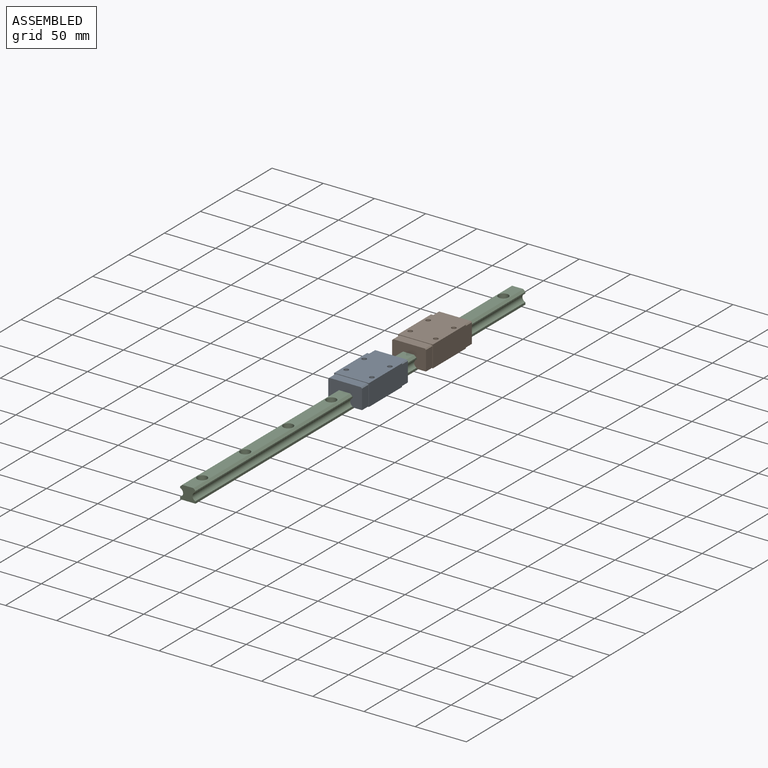
[diagram: assembled view]
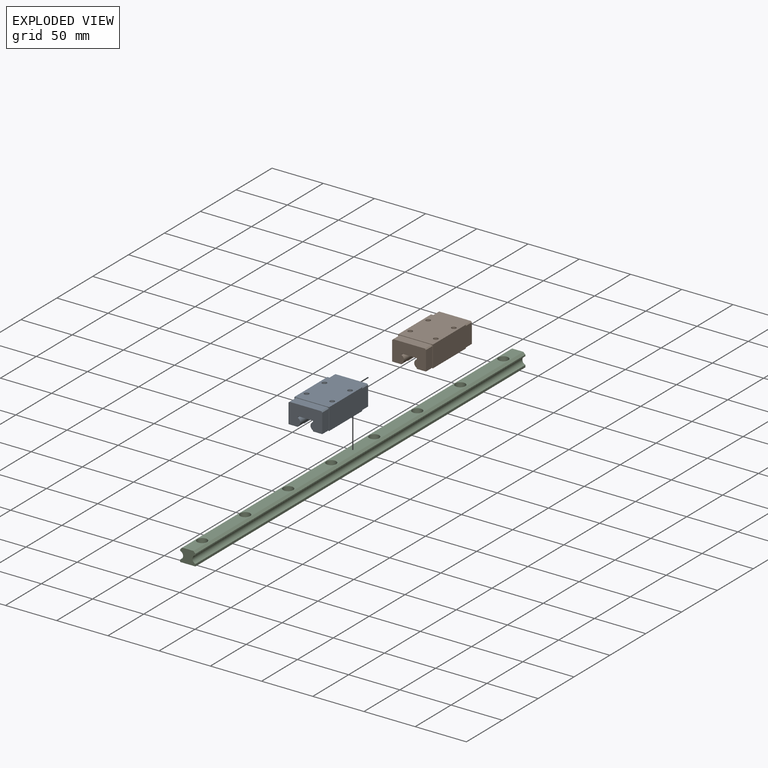
[diagram: exploded view]
GUIDED TOUR — MATED ASSEMBLY (Onshape document 84d2dcffe52817530951cf2d, AutoMate assembly 84d2dcffe52817530951cf2d_30d98350878cbec447f55ae2_350e7b7f4f0bf1265545a61c_default)

This assembly has 3 components, labeled P0..P2 below (a component is one placed occurrence of a part; the same part can appear more than once), held together by 3 mates. A mate is a constraint between two components; its type names the relative motion it leaves free:
  CYLINDRICAL — leaves both rotation about and translation along the listed axis free,
  PARALLEL — keeps the two listed directions parallel.
Axis/direction vectors are unit vectors and 'through' points are millimeter coordinates, both in the assembly's world frame.

MATES
  1. PARALLEL "Parallel 1": P1 <-> P2, direction (0.000, 0.000, -1.000) through (33.70, -156.79, 16.94) mm
  2. CYLINDRICAL "Cylindrical 1": P1 <-> P2, axis (0.000, 1.000, 0.000) through (24.70, -124.79, 11.94) mm
  3. CYLINDRICAL "Cylindrical 2": P0 <-> P2, axis (0.000, 1.000, 0.000) through (24.70, -213.99, 11.94) mm

ASSEMBLY ORDER
  1. P1 — the base component [order verified]
  2. P0 [order verified]
  3. P2 [order verified]
Order-tag legend:
  [order verified] — this step's position reverses a verified removal order: the component was checked to insert without passing through the ones already placed.

Of the 3 components, 1 carries the full construction recipe — the FeatureScript program that regenerates the part's solid from scratch; the rest are supplied as boundary geometry only.
Each toured component is shown spotlighted twice — in the assembled view, then in the exploded view, where a leader line traces a displaced component back to its assembled socket (saturated green if recipe-attached, orange if geometry-only; every other component desaturated gray) — followed by its recipe or geometry summary and the mates that hold it.
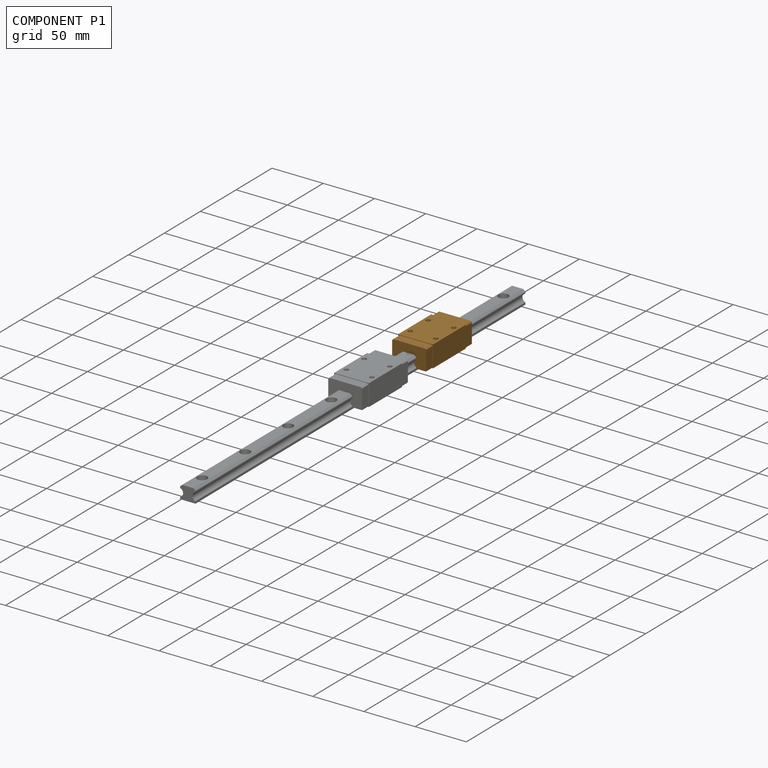
[diagram: component P1 — assembled]
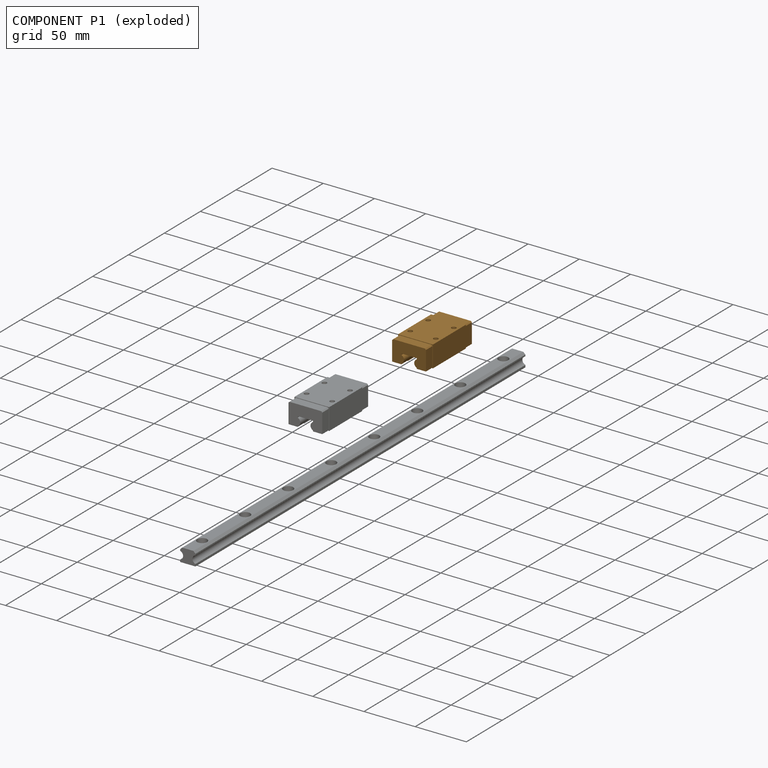
[diagram: component P1 — exploded]
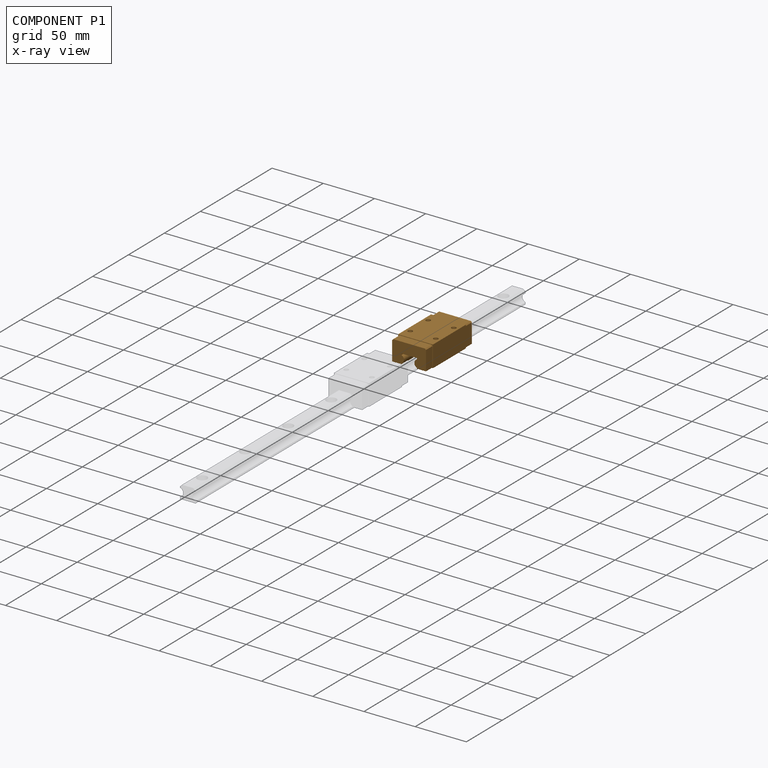
[diagram: component P1 — x-ray view]
COMPONENT P1 — geometry summary (no construction recipe available for this part):
  bounding box: 64.0 x 34.0 x 21.0 mm
  B-rep topology: 1 solid, 38 faces, 204 edges
  volume: 36269 mm^3 (79% of its bounding box)
  symmetry: 2-fold rotationally symmetric about the z axis; mirror-symmetric across its x mid-plane, y mid-plane
Held by: PARALLEL mate "Parallel 1" to P2; CYLINDRICAL mate "Cylindrical 1" to P2.
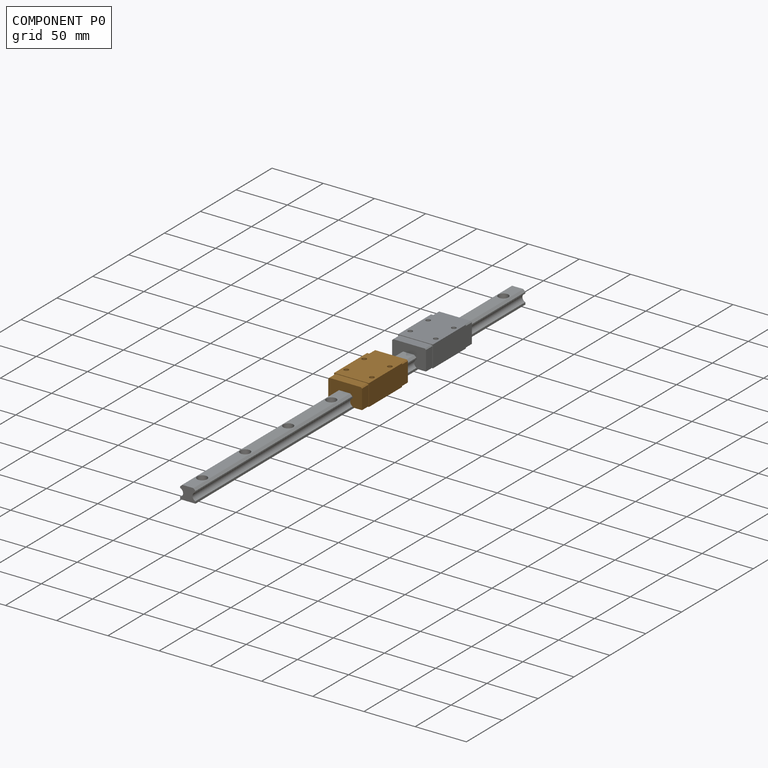
[diagram: component P0 — assembled]
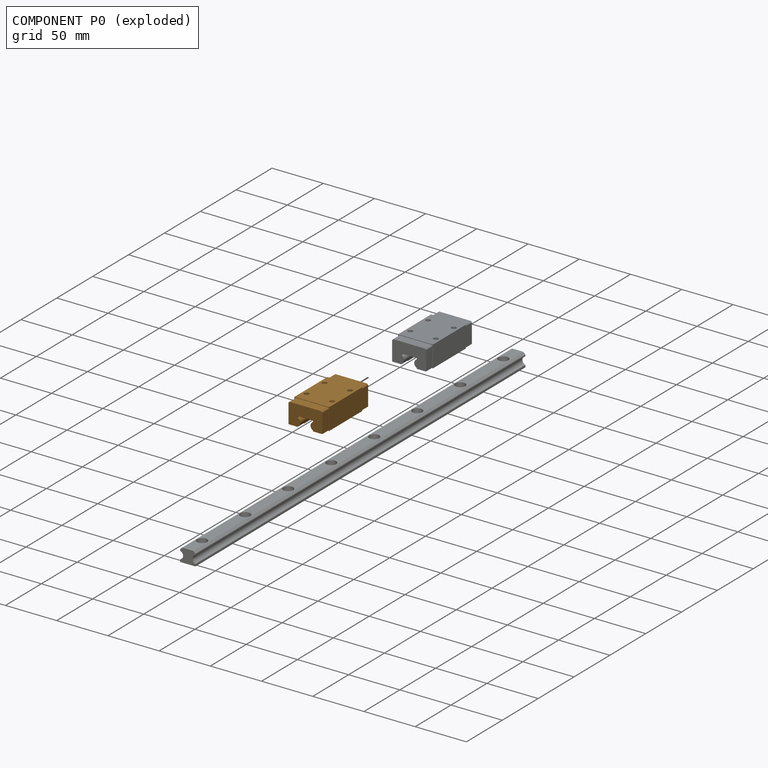
[diagram: component P0 — exploded]
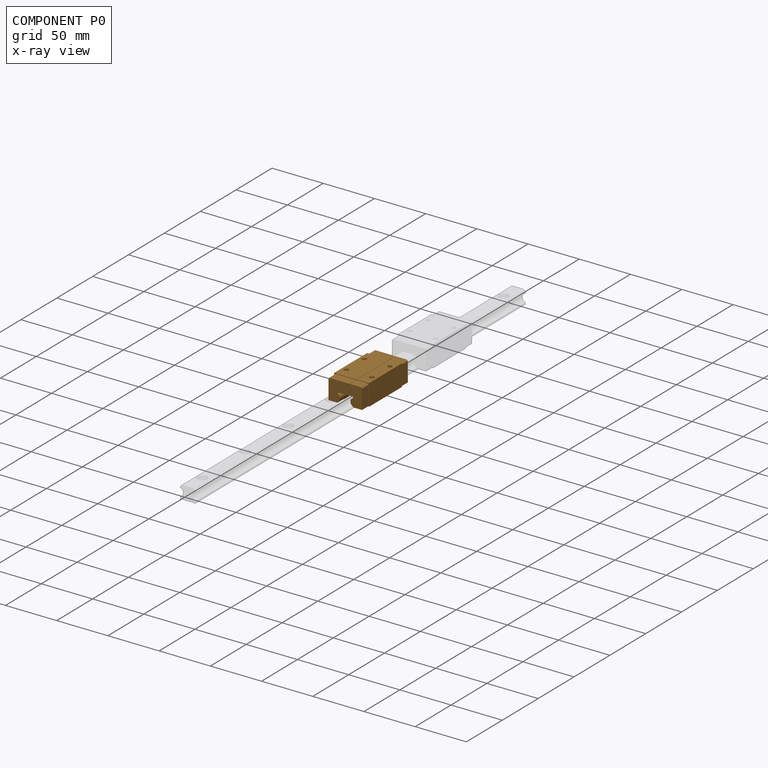
[diagram: component P0 — x-ray view]
COMPONENT P0 — geometry summary (no construction recipe available for this part):
  bounding box: 64.0 x 34.0 x 21.0 mm
  B-rep topology: 1 solid, 38 faces, 204 edges
  volume: 36269 mm^3 (79% of its bounding box)
  symmetry: 2-fold rotationally symmetric about the z axis; mirror-symmetric across its x mid-plane, y mid-plane
Held by: CYLINDRICAL mate "Cylindrical 2" to P2.
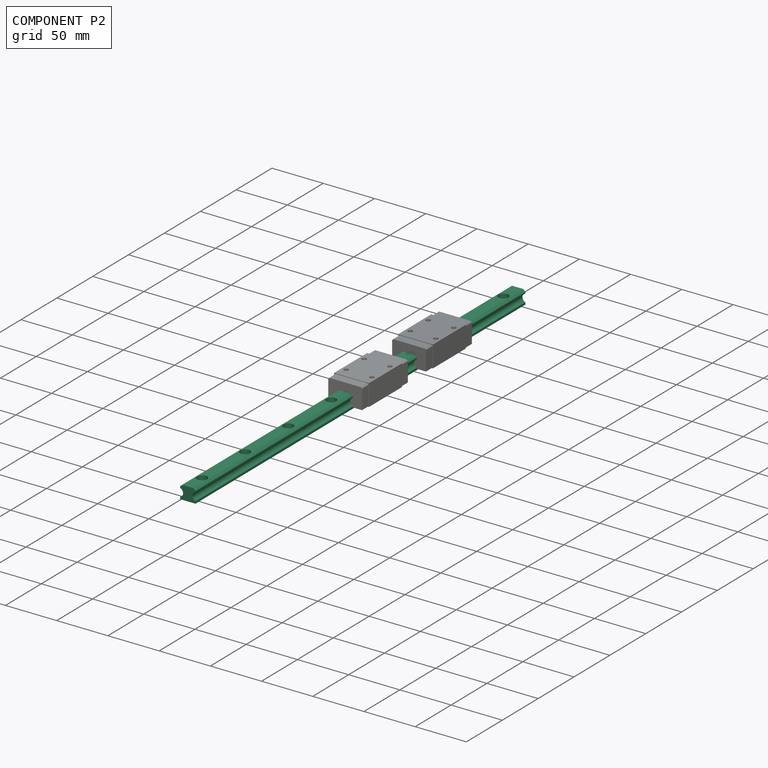
[diagram: component P2 — assembled]
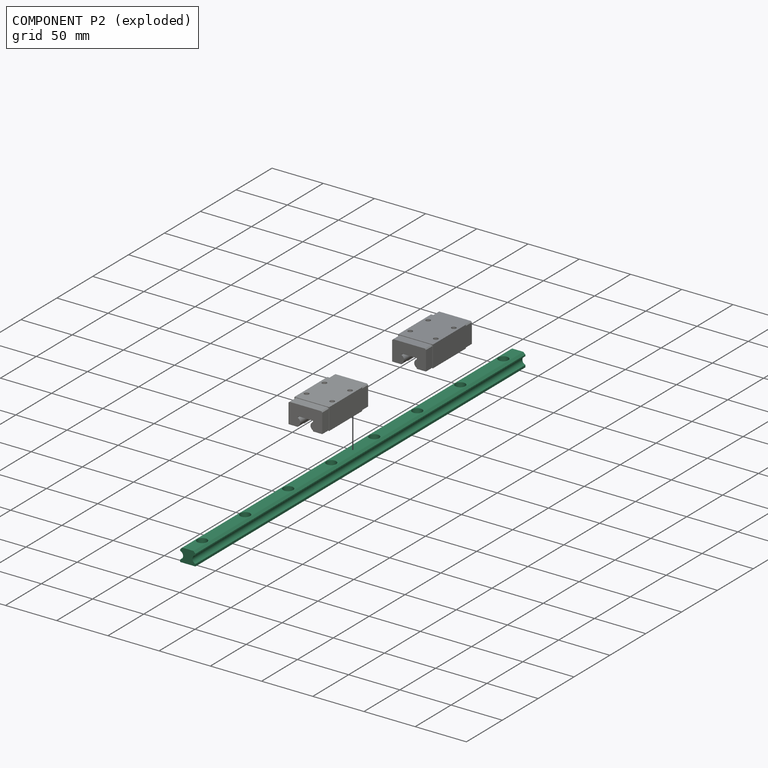
[diagram: component P2 — exploded]
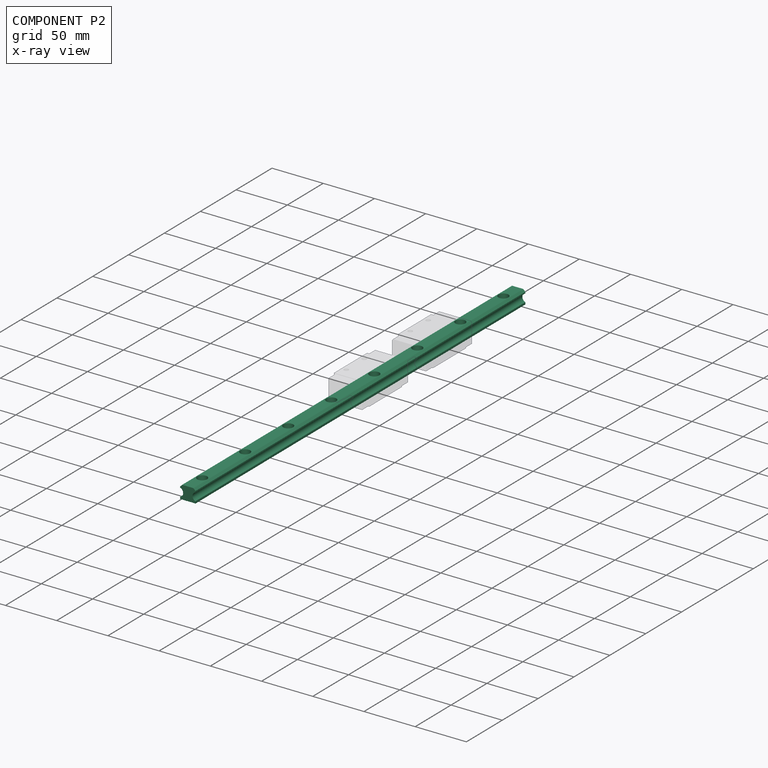
[diagram: component P2 — x-ray view]
COMPONENT P2 — recipe-attached (CADFS 00295652, mesh-verified: the recipe's output STEP matches this component's geometry to below the mesh-comparison resolution (tessellation chordal tolerance ~0.691 mm)).
Held by: PARALLEL mate "Parallel 1" to P1; CYLINDRICAL mate "Cylindrical 1" to P1; CYLINDRICAL mate "Cylindrical 2" to P0.
Construction recipe (FeatureScript — the CAD program that rebuilds this solid; sketch coordinates are in the units given by the * unit suffixes, e.g. mm):

FeatureScript 1511;
import(path : "onshape/std/geometry.fs", version : "1511.0");
import(path : "onshape/std/common.fs", version : "1511.0");
const mm = millimeter;
const VERTEX = EntityType.VERTEX;
const EDGE = EntityType.EDGE;
const FACE = EntityType.FACE;
const BODY = EntityType.BODY;
function v(x, y){return vector(x, y);}
function OD(order){return orderDisambiguation(order);}
function OSD(set){return originalSetDisambiguation(set);}
function TD(topology){return topologyDisambiguation(topology);}
function TDD(query){return trueDependencyDisambiguation(query);}
function sQuery(a, b, c) {return sketchEntityQuery(a, b, c);}

annotation { "Feature Type Name" : "Feature", "Feature Type Description" : "" }
export const myFeature = defineFeature(function(context is Context, id is Id, definition is map)
    precondition{}
    {
        {
            var Q0;
            Q0=qCreatedBy(makeId("Front.planeOp"),FACE);
            var sketch = newSketch(context, id + "F0", { "sketchPlane" : qUnion([Q0])});
            skLineSegment(sketch, "E0", {"start": v(0, 0) * mm, "end": v(0, 42.87) * mm, "construction": true});
            skLineSegment(sketch, "E1.bottom", {"start": v(-7.5, 0) * mm, "end": v(7.5, 0) * mm});
            skLineSegment(sketch, "E1.top", {"start": v(-5.5, 13.2) * mm, "end": v(5.5, 13.2) * mm});
            skLineSegment(sketch, "E1.left", {"start": v(-7.5, 0) * mm, "end": v(-7.5, 2.15) * mm});
            skLineSegment(sketch, "E1.right", {"start": v(7.5, 0) * mm, "end": v(7.5, 2.15) * mm});
            skArc(sketch, "E2", {"start": v(-7.5, 2.15) * mm, "mid": v(-4.6, 6) * mm, "end": v(-7.5, 9.85) * mm});
            skArc(sketch, "E3", {"start": v(7.5, 9.85) * mm, "mid": v(4.6, 6) * mm, "end": v(7.5, 2.15) * mm});
            skLineSegment(sketch, "E4.trimOffspring", {"start": v(7.5, 9.85) * mm, "end": v(7.5, 11.2) * mm});
            skLineSegment(sketch, "E5.trimOffspring", {"start": v(-7.5, 9.85) * mm, "end": v(-7.5, 11.2) * mm});
            skLineSegment(sketch, "E6", {"start": v(-7.5, 11.2) * mm, "end": v(-5.5, 13.2) * mm});
            skLineSegment(sketch, "E7", {"start": v(5.5, 13.2) * mm, "end": v(7.5, 11.2) * mm});
            skSolve(sketch);
        }
        {
            var Q0;
            Q0 = qSketchRegion(id + "F0", true);
            extrude(context, id + "F1", {"entities" : qUnion([Q0]), "depth" : 460 * mm});
        }
        {
            var Q0;
            Q0=makeQuery(id+"F1.opExtrude","SWEPT_FACE",FACE,{"disambiguationData":[OSD([sQuery(id+"F0.wireOp",EDGE,"E1.top")])]});
            var sketch = newSketch(context, id + "F2", { "sketchPlane" : qUnion([Q0])});
            skLineSegment(sketch, "E8", {"start": v(0, 0) * mm, "end": v(0, -460) * mm, "construction": true});
            skPoint(sketch, "E9", {"position": v(0, -440) * mm});
            skPoint(sketch, "E10.0.1.0", {"position": v(0, -380) * mm});
            skPoint(sketch, "E10.0.2.0", {"position": v(0, -320) * mm});
            skPoint(sketch, "E10.0.3.0", {"position": v(0, -260) * mm});
            skPoint(sketch, "E10.0.4.0", {"position": v(0, -200) * mm});
            skPoint(sketch, "E10.0.5.0", {"position": v(0, -140) * mm});
            skPoint(sketch, "E10.0.6.0", {"position": v(0, -80) * mm});
            skPoint(sketch, "E10.0.7.0", {"position": v(0, -20) * mm});
            skLineSegment(sketch, "E10.direction1", {"start": v(0, -440) * mm, "end": v(25, -440) * mm, "construction": true});
            skLineSegment(sketch, "E10.direction2", {"start": v(0, -440) * mm, "end": v(0, -380) * mm, "construction": true});
            skSolve(sketch);
        }
        {
            var Q0;
            Q0=sQuery(id+"F2.wireOp",VERTEX,"E10.0.7.0");
            var Q1;
            Q1=sQuery(id+"F2.wireOp",VERTEX,"E10.0.6.0");
            var Q2;
            Q2=sQuery(id+"F2.wireOp",VERTEX,"E10.0.5.0");
            var Q3;
            Q3=sQuery(id+"F2.wireOp",VERTEX,"E10.0.4.0");
            var Q4;
            Q4=sQuery(id+"F2.wireOp",VERTEX,"E10.0.3.0");
            var Q5;
            Q5=sQuery(id+"F2.wireOp",VERTEX,"E10.0.2.0");
            var Q6;
            Q6=sQuery(id+"F2.wireOp",VERTEX,"E10.0.1.0");
            var Q7;
            Q7=sQuery(id+"F2.wireOp",VERTEX,"E9");
            var Q8;
            Q8=makeQuery(id+"F1.opExtrude","SWEPT_BODY",BODY,{"disambiguationData":[OSD([sQuery(id+"F0.wireOp",EDGE,"E1.bottom"),sQuery(id+"F0.wireOp",EDGE,"E1.top"),sQuery(id+"F0.wireOp",EDGE,"E1.left"),sQuery(id+"F0.wireOp",EDGE,"E1.right"),sQuery(id+"F0.wireOp",EDGE,"E2"),sQuery(id+"F0.wireOp",EDGE,"E3"),sQuery(id+"F0.wireOp",EDGE,"E4.trimOffspring"),sQuery(id+"F0.wireOp",EDGE,"E5.trimOffspring"),sQuery(id+"F0.wireOp",EDGE,"E6"),sQuery(id+"F0.wireOp",EDGE,"E7")])]});
            hole(context, id + "F3", {"style" : HoleStyle.C_BORE, "endStyle" : HoleEndStyle.THROUGH, "standardTappedOrClearance" : lookupTablePath({ "standard" : "ISO", "fit" : "Normal", "size" : "M5", "type" : "Clearance" }), "standardBlindInLast" : lookupTablePath({ "fit" : "Standard", "standard" : "ISO", "size" : "M5", "type" : "Clearance" }), "holeDiameter" : 5.5 * mm, "cBoreDiameter" : 9.75 * mm, "cBoreDepth" : 5 * mm, "tappedDepth" : 12 * mm, "tapClearance" : 3, "locations" : qUnion([Q0, Q1, Q2, Q3, Q4, Q5, Q6, Q7]), "scope" : qUnion([Q8])});
        }
    });
PROVENANCE & LICENSES
Assembly (occurrences, transforms, mates, per-part STEP geometry): AutoMate dataset, Zenodo record 7776208, CC0.
Construction recipes: CADFS (HuggingFace VladPyatov/CADFS, CC-BY-4.0, layered over the ABC dataset), FeatureScript reconstruction programs keyed by ABC model id.
Join: ABC meta listings map ABC model id -> Onshape documentId; within a shared document, parts are matched by geometric signature (bounding-box dims + volume at 0.1% relative tolerance, exact B-rep face/solid counts).
Verification: 1 of this assembly's 3 components carries a recipe attachment, and every attachment is mesh-verified: the CADFS STEP and the AutoMate member STEP were compared as meshes in their shared local frame (symmetric sampled-point-to-mesh distance); worst across the 1 attachment: below the mesh-comparison resolution (tessellation chordal tolerance ~0.691 mm) on a 460 mm part.
Renders: orthographic iso camera (az 35 / el 25); the floor grid conveys scale (grid pitch printed in each image; no ruler). In the exploded view each component is displaced by its stored offset vector: the offsets alone carry the explosion direction (mate normal/axis signs are not orientation cues and do not encode it), and separation distances are assigned per mate-chain, not proportionally to assembly-order depth.
